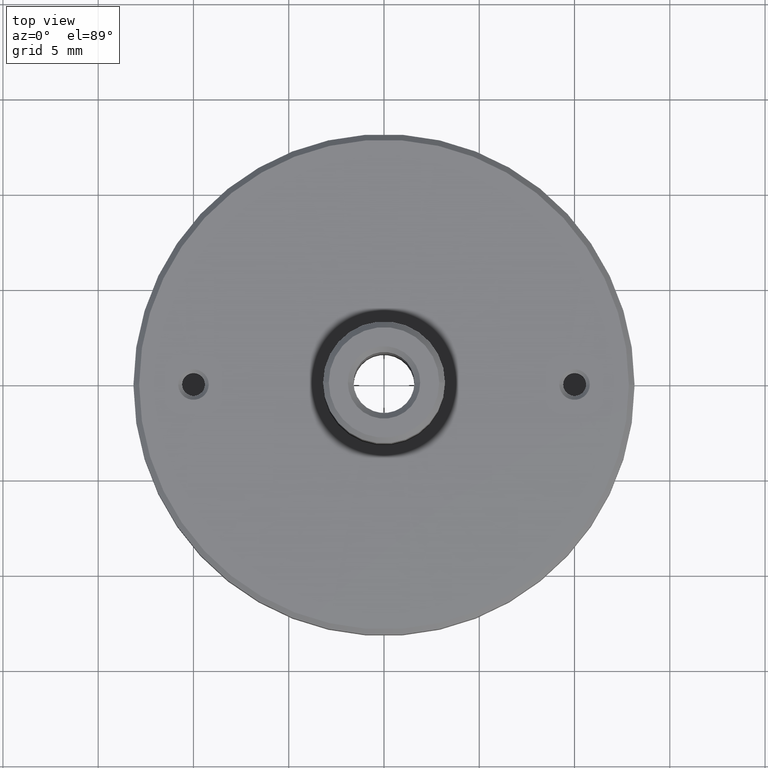
[diagram: clean part render]
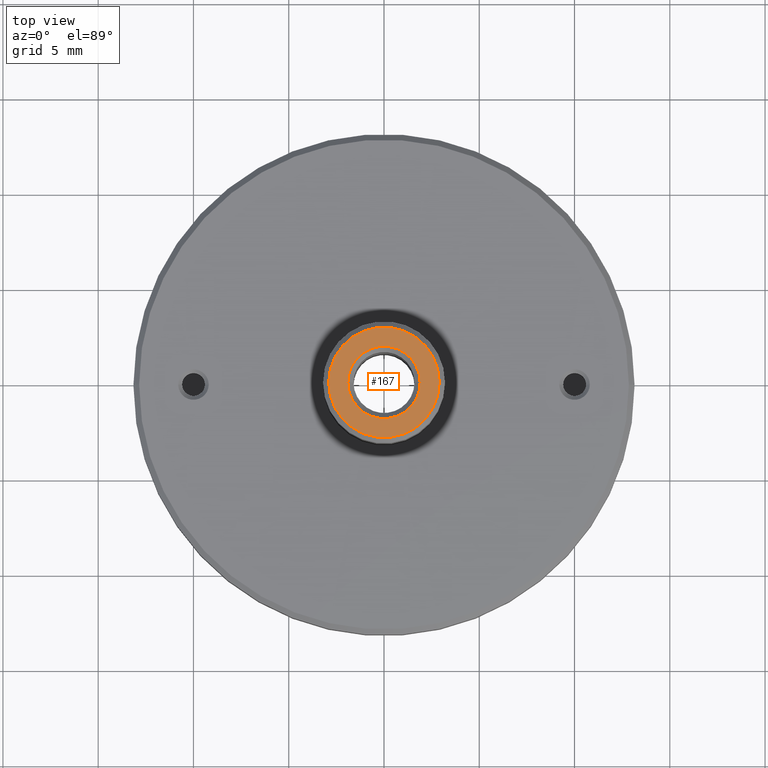
[diagram: same view with one face highlighted and labeled with its STEP entity id]
A machine part, top view. The second image highlights one B-rep face of the part: STEP entity #167.
In plain terms, the highlighted planar face has unit normal (0, 0, 1).
Its self-contained STEP definition (entity closure, byte-faithful):
#31 = CARTESIAN_POINT ( 'NONE',  ( -1.899999999999930633, 2.326828918379886069E-16, 9.699999999999931788 ) ) ;
#54 = PLANE ( 'NONE',  #436 ) ;
#56 = VERTEX_POINT ( 'NONE', #488 ) ;
#80 = DIRECTION ( 'NONE',  ( -0.000000000000000000, -0.000000000000000000, 1.000000000000000000 ) ) ;
#106 = VERTEX_POINT ( 'NONE', #606 ) ;
#152 = EDGE_CURVE ( 'NONE', #363, #56, #599, .T. ) ;
#167 = ADVANCED_FACE ( 'NONE', ( #262, #687 ), #54, .T. ) ;
#194 = DIRECTION ( 'NONE',  ( 0.000000000000000000, 0.000000000000000000, 1.000000000000000000 ) ) ;
#205 = DIRECTION ( 'NONE',  ( -0.000000000000000000, 0.000000000000000000, -1.000000000000000000 ) ) ;
#262 = FACE_BOUND ( 'NONE', #889, .T. ) ;
#273 = EDGE_LOOP ( 'NONE', ( #407, #412 ) ) ;
#286 = EDGE_CURVE ( 'NONE', #106, #750, #422, .T. ) ;
#290 = CARTESIAN_POINT ( 'NONE',  ( 0.000000000000000000, 0.000000000000000000, 9.699999999999931788 ) ) ;
#299 = EDGE_CURVE ( 'NONE', #56, #363, #301, .T. ) ;
#301 = CIRCLE ( 'NONE', #573, 1.899999999999931521 ) ;
#323 = CARTESIAN_POINT ( 'NONE',  ( -2.899999999999999911, 0.000000000000000000, 9.700000000000001066 ) ) ;
#334 = CARTESIAN_POINT ( 'NONE',  ( -2.934799999999999631, -2.934799999999999631, 9.700000000000001066 ) ) ;
#339 = DIRECTION ( 'NONE',  ( 1.000000000000000000, 0.000000000000000000, 0.000000000000000000 ) ) ;
#359 = CARTESIAN_POINT ( 'NONE',  ( 0.000000000000000000, 0.000000000000000000, 9.700000000000001066 ) ) ;
#363 = VERTEX_POINT ( 'NONE', #31 ) ;
#407 = ORIENTED_EDGE ( 'NONE', *, *, #910, .T. ) ;
#412 = ORIENTED_EDGE ( 'NONE', *, *, #286, .T. ) ;
#422 = CIRCLE ( 'NONE', #729, 2.899999999999999911 ) ;
#436 = AXIS2_PLACEMENT_3D ( 'NONE', #334, #194, #339 ) ;
#488 = CARTESIAN_POINT ( 'NONE',  ( 1.899999999999930633, 0.000000000000000000, 9.699999999999931788 ) ) ;
#528 = AXIS2_PLACEMENT_3D ( 'NONE', #707, #80, #715 ) ;
#573 = AXIS2_PLACEMENT_3D ( 'NONE', #290, #911, #700 ) ;
#588 = ORIENTED_EDGE ( 'NONE', *, *, #299, .T. ) ;
#599 = CIRCLE ( 'NONE', #719, 1.899999999999931521 ) ;
#606 = CARTESIAN_POINT ( 'NONE',  ( 2.899999999999999911, 3.735172737399427639E-16, 9.700000000000001066 ) ) ;
#637 = DIRECTION ( 'NONE',  ( -0.000000000000000000, -0.000000000000000000, 1.000000000000000000 ) ) ;
#660 = CIRCLE ( 'NONE', #528, 2.899999999999999911 ) ;
#687 = FACE_OUTER_BOUND ( 'NONE', #273, .T. ) ;
#700 = DIRECTION ( 'NONE',  ( 1.000000000000000000, 0.000000000000000000, 0.000000000000000000 ) ) ;
#707 = CARTESIAN_POINT ( 'NONE',  ( 0.000000000000000000, 0.000000000000000000, 9.700000000000001066 ) ) ;
#715 = DIRECTION ( 'NONE',  ( -1.000000000000000000, 0.000000000000000000, 0.000000000000000000 ) ) ;
#719 = AXIS2_PLACEMENT_3D ( 'NONE', #837, #205, #833 ) ;
#729 = AXIS2_PLACEMENT_3D ( 'NONE', #359, #637, #849 ) ;
#750 = VERTEX_POINT ( 'NONE', #323 ) ;
#759 = ORIENTED_EDGE ( 'NONE', *, *, #152, .T. ) ;
#833 = DIRECTION ( 'NONE',  ( 1.000000000000000000, 0.000000000000000000, 0.000000000000000000 ) ) ;
#837 = CARTESIAN_POINT ( 'NONE',  ( 0.000000000000000000, 0.000000000000000000, 9.699999999999931788 ) ) ;
#849 = DIRECTION ( 'NONE',  ( -1.000000000000000000, 0.000000000000000000, 0.000000000000000000 ) ) ;
#889 = EDGE_LOOP ( 'NONE', ( #588, #759 ) ) ;
#910 = EDGE_CURVE ( 'NONE', #750, #106, #660, .T. ) ;
#911 = DIRECTION ( 'NONE',  ( -0.000000000000000000, 0.000000000000000000, -1.000000000000000000 ) ) ;